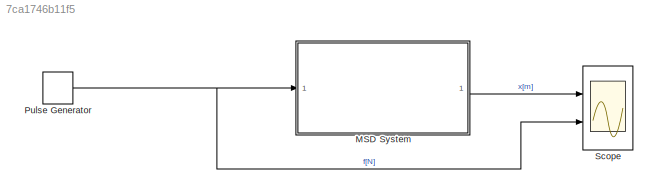
MODEL slx_7ca1746b11f5
KIND model
CONFIG AbsTol = auto
CONFIG EnableMultiTasking = off
CONFIG FixedStep = 1e-3
CONFIG MaxStep = auto
CONFIG MinStep = auto
CONFIG RelTol = 1e-3
CONFIG SampleTimeConstraint = Unconstrained
CONFIG SolverName = ode4
CONFIG StartTime = 0.0
CONFIG StopTime = Endtime
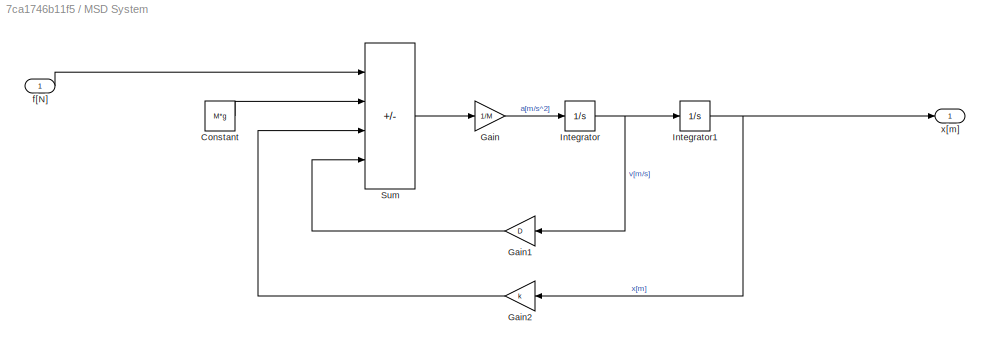
BLOCK [SubSystem] MSD System
  Ports = [1, 1]
  RequestExecContextInheritance = off
BLOCK [Constant] MSD System/Constant
  Value = M*g
BLOCK [Gain] MSD System/Gain
  Gain = 1/M
BLOCK [Gain] MSD System/Gain1
  Gain = D
BLOCK [Gain] MSD System/Gain2
  Gain = k
BLOCK [Integrator] MSD System/Integrator
  Ports = [1, 1]
BLOCK [Integrator] MSD System/Integrator1
  InitialCondition = M*g/k
  Ports = [1, 1]
BLOCK [Sum] MSD System/Sum
  IconShape = rectangular
  Inputs = |++--
  Ports = [4, 1]
BLOCK [Inport] MSD System/f[N]
BLOCK [Outport] MSD System/x[m]
BLOCK [DiscretePulseGenerator] Pulse Generator
  Amplitude = f
  Period = p_cycle
  PhaseDelay = 10
  Ports = [0, 1]
  PulseType = Time based
  PulseWidth = p_width
BLOCK [Scope] Scope
  Floating = off
  NumInputPorts = 2
  Ports = [2]
  ScopeSpecificationString = Simulink.scopes.TimeScopeBlockCfg('CurrentConfiguration', extmgr.ConfigurationSet(extmgr.Configuration('Core','General UI',true),extmgr.Configuration('Core','Source UI',true),extmgr.Configuration('Sources','WiredSimulink',true),extmgr.Configuration('Visuals','Time Domain',true,'SerializedDisplays',{struct('MinYLimReal','0.8057','MaxYLimReal','1.35707','YLabelReal','','MinYLimMag','0.8057','MaxYLim...<+1977ch>
LINE MSD System/Constant:1 -> MSD System/Sum:2
LINE MSD System/Gain1:1 -> MSD System/Sum:4
LINE MSD System/Gain2:1 -> MSD System/Sum:3
LINE MSD System/Gain:1 -> MSD System/Integrator:1
NET MSD System/Integrator1:1 -> MSD System/Gain2:1, MSD System/x[m]:1
NET MSD System/Integrator:1 -> MSD System/Gain1:1, MSD System/Integrator1:1
LINE MSD System/Sum:1 -> MSD System/Gain:1
LINE MSD System/f[N]:1 -> MSD System/Sum:1
LINE MSD System:1 -> Scope:1
NET Pulse Generator:1 -> MSD System:1, Scope:2
note: NET lines group one-source signal fan-out (src -> all destinations, sorted); 1:1 wires keep LINE
